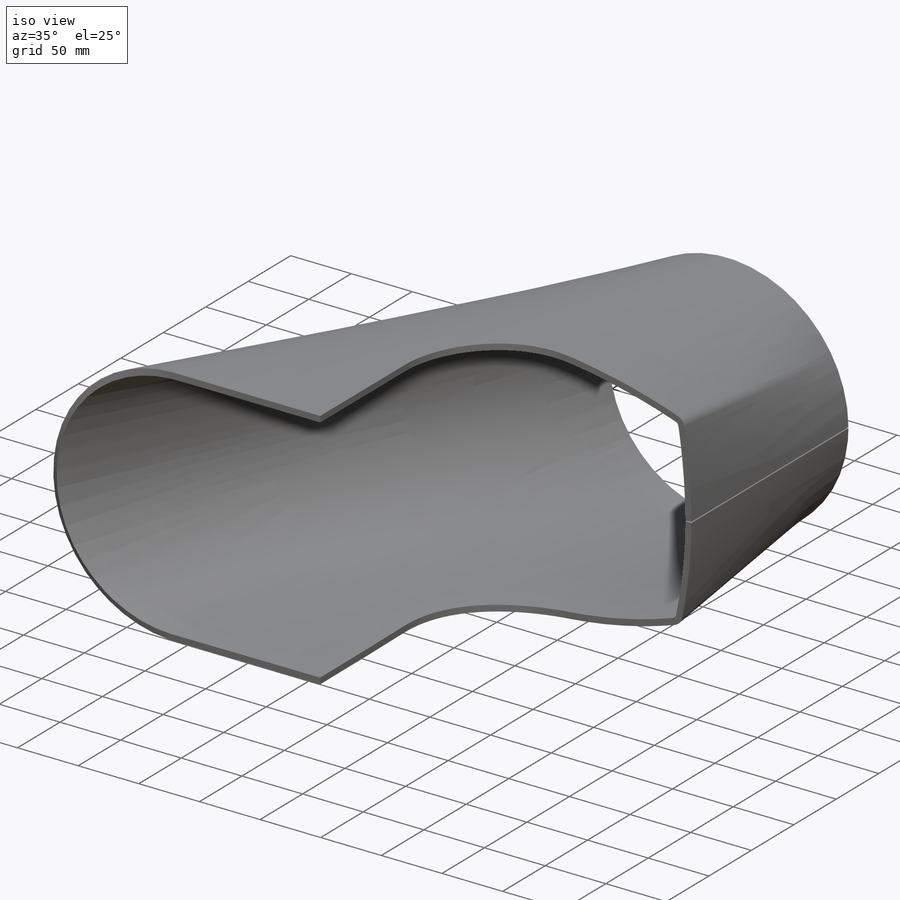
[diagram: iso view]
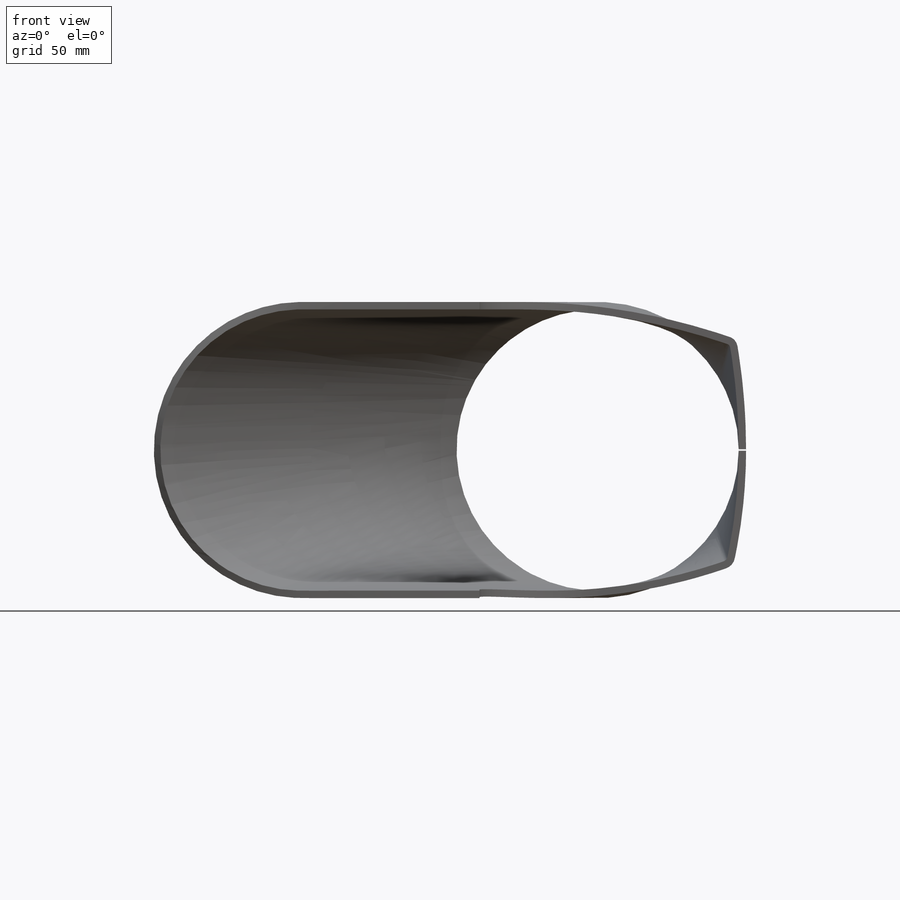
[diagram: front view]
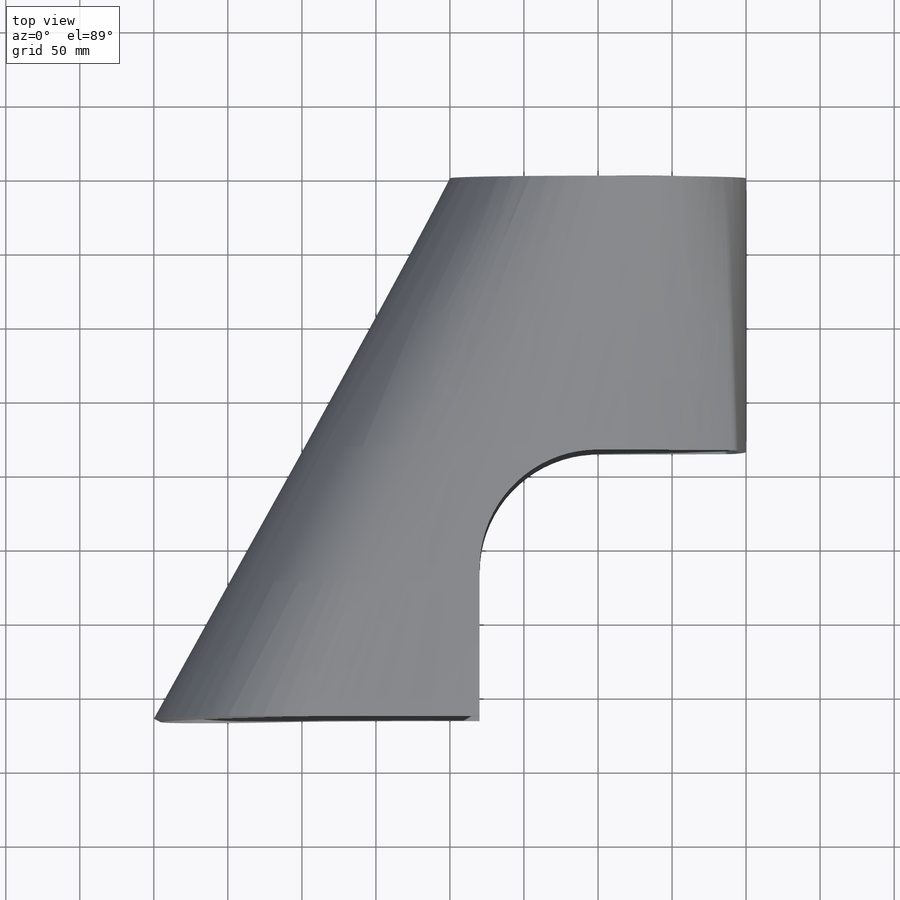
[diagram: top view]
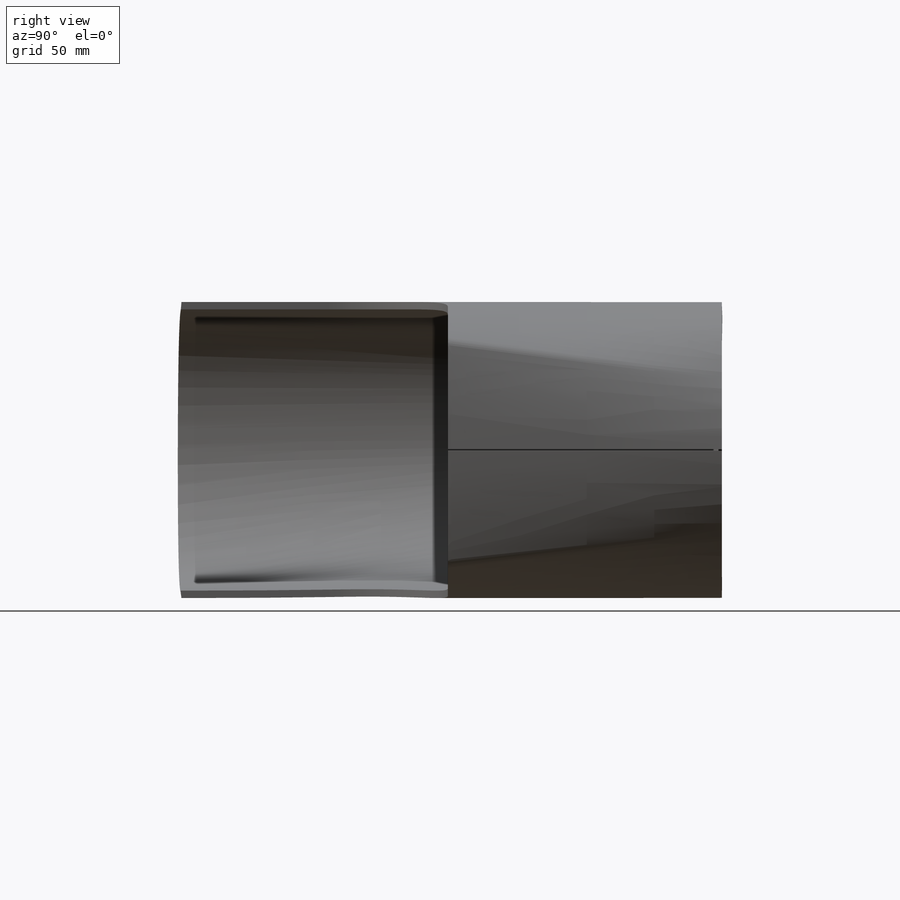
[diagram: right view]
SOLIDWORKS PART (.sldprt)
format: sldprt  version: not decoded by parser v0  size: 883,200 bytes
history: native  units: mm
features: sketch x30, plane x4, extrude x3, cut_extrude x3, material x1, delete_body x1, sheet_metal_op x1 + 2 further entries (+10 scaffold rows collapsed; 1 parser-record rows omitted)
feature tree (56):
  scaffold x10  (default folders/planes/origin — collapsed)
  material  "PP"
  plane  "X/Z"
  plane  "X/Y"
  plane  "Y/Z"
  sketch  "Skizze1"  dims[D1=200.0mm]
  extrude  "Aufsatz-Linear austragen1"  Depth=185mm
  plane  "Ebene1"  Offset=365mm
  sketch  "Skizze2"  dims[D1=200.0mm D2=200.0mm]
  sketch  "Skizze3"  dims[D1=200.0mm]
  sketch  "Skizze4"
  extrude  "Aufsatz-Linear austragen2"  Depth=100mm
  sketch  "Skizze6"  dims[D1=100.0mm D2=200.0mm D3=1.0mm]
  sketch  "Skizze7"  dims[D1=100.0mm D2=1.0mm]
  sketch  "Skizze8"
  cut_extrude  "Schnitt-Linear austragen1"  Depth=100mm
  extrude  "Ausformung4"  [1 undecoded]
  sketch  "Skizze10"  dims[D1=160.0mm]
  cut_extrude  "Schnitt-Linear austragen2"  [1 undecoded]
  sketch  "Skizze11"  dims[D1=200.0mm D2=0.0mm D3=~101.573137mm]
  sketch  "Skizze12"  dims[D1=230.0mm D2=230.0mm]
  sketch  "Skizze13"  dims[D1=0.0mm]
  sketch  "Skizze14"  dims[c1.D1=99.5mm c1.D2=~298.999987mm c2.D1=300.0mm]
  delete_body  "Körper-Löschen1"
  cut_extrude  "Schnitt-Linear austragen3"  Depth=1mm
  sketch  "Biegung-Linien5"
  sketch  "Rahmen5"
  sheet_metal_op  "Blech9"
  "Abwicklung9"
  sketch  "Biegung-Linien6"
  sketch  "Rahmen6"
  parser-record x1  (decoder bookkeeping rows leaked as tree rows — omitted from the tree; the rows remain in map.json)
  sketch  "Biegung-Linien6"
  sketch  "Rahmen6"  dims[Blech11=0.0 D1=2.0mm D2=500.0mm D3=0.0mm D7=5.0mm Abwicklung9=0.0deg]
  sketch  "Biegung-Linien6"
  sketch  "Rahmen6"  dims[Blech12=0.0 D1=2.0mm D2=500.0mm D3=0.0mm D7=5.0mm Abwicklung9=0.0deg]
  sketch  "Biegung-Linien6"
  sketch  "Rahmen6"  dims[Blech13=0.0 D1=2.0mm D2=500.0mm D3=0.0mm D7=5.0mm Abwicklung9=0.0deg]
  sketch  "Biegung-Linien6"
  sketch  "Rahmen6"  dims[Blech14=0.0 D1=2.0mm D2=500.0mm D3=0.0mm D7=5.0mm Abwicklung9=0.0deg]
  sketch  "Biegung-Linien6"
  sketch  "Rahmen6"  dims[Blech15=0.0 D1=2.0mm D2=500.0mm D3=0.0mm D7=5.0mm Abwicklung9=0.0deg]
  sketch  "Biegung-Linien6"
  sketch  "Rahmen6"  dims[Blech16=0.0 D1=2.0mm D2=500.0mm D3=0.0mm D7=5.0mm Abwicklung9=0.0deg]
  sketch  "Biegung-Linien6"
  sketch  "Rahmen6"
  "Abwickeln-<Freiform-Biegung6>1"
decode coverage: 20 of 38 modeling features carry decoded parameters; 2 rows unclassified (native names shown)
note: ~ marks probable driven/reference dimensions
note: 2 parameter values undecoded
note: suppression state not decoded; provenance and decode notes live in map.json
